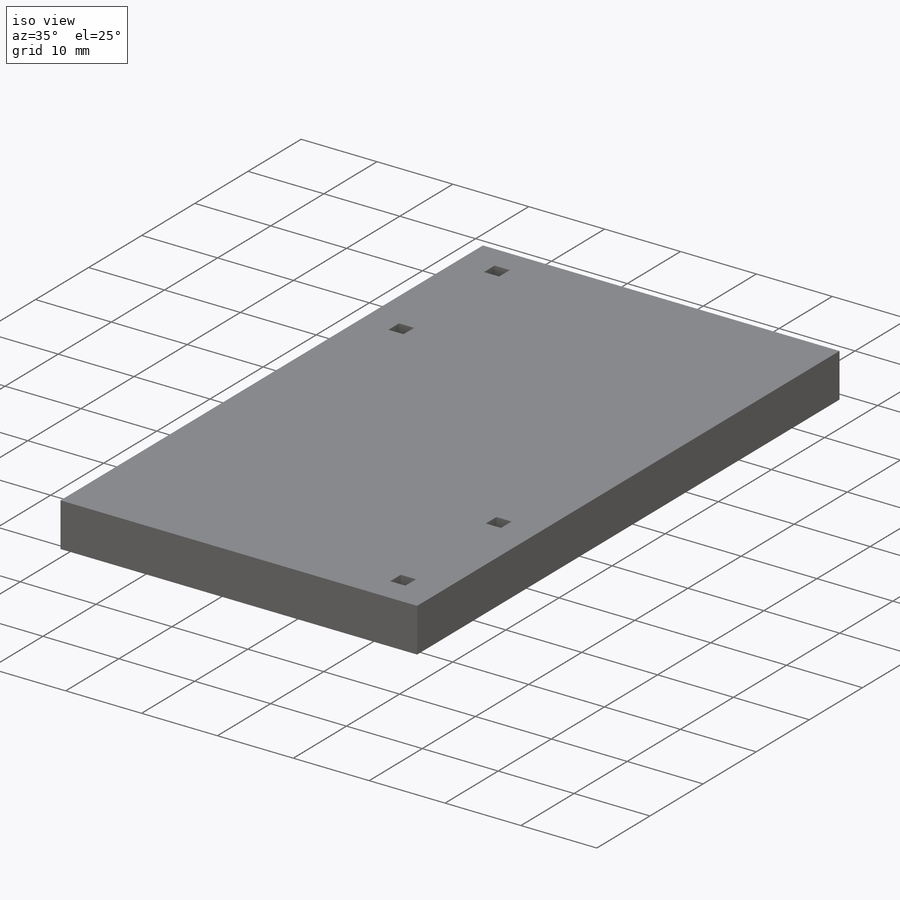
[diagram: iso view]
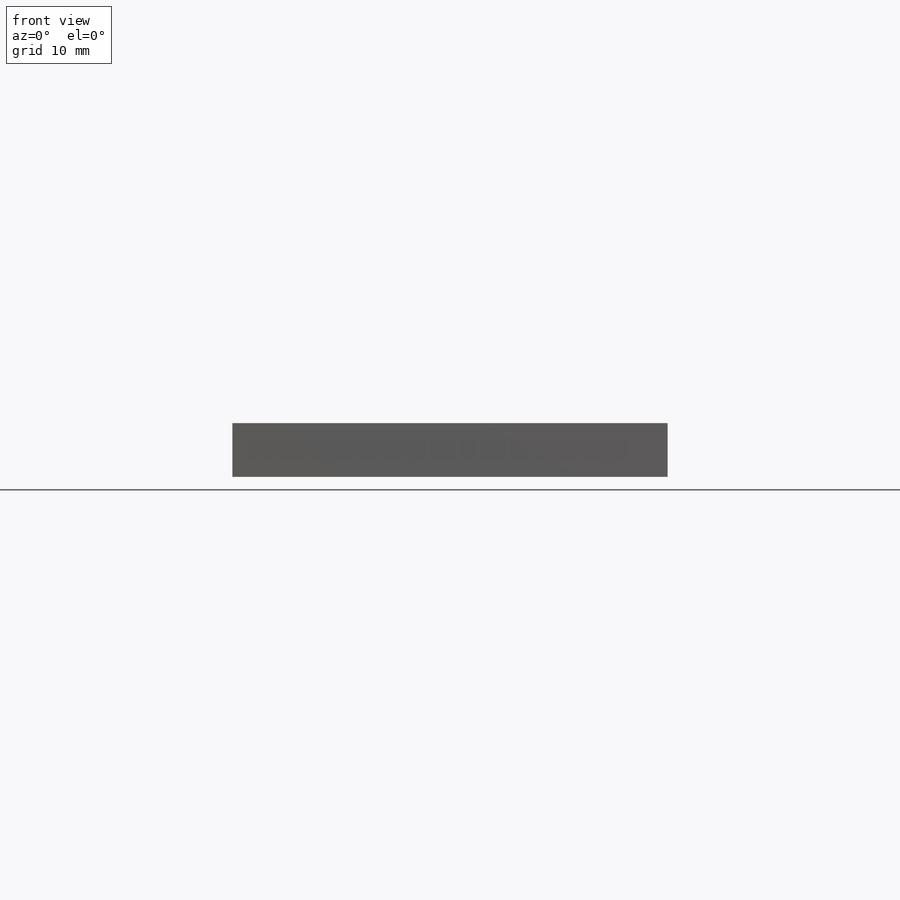
[diagram: front view]
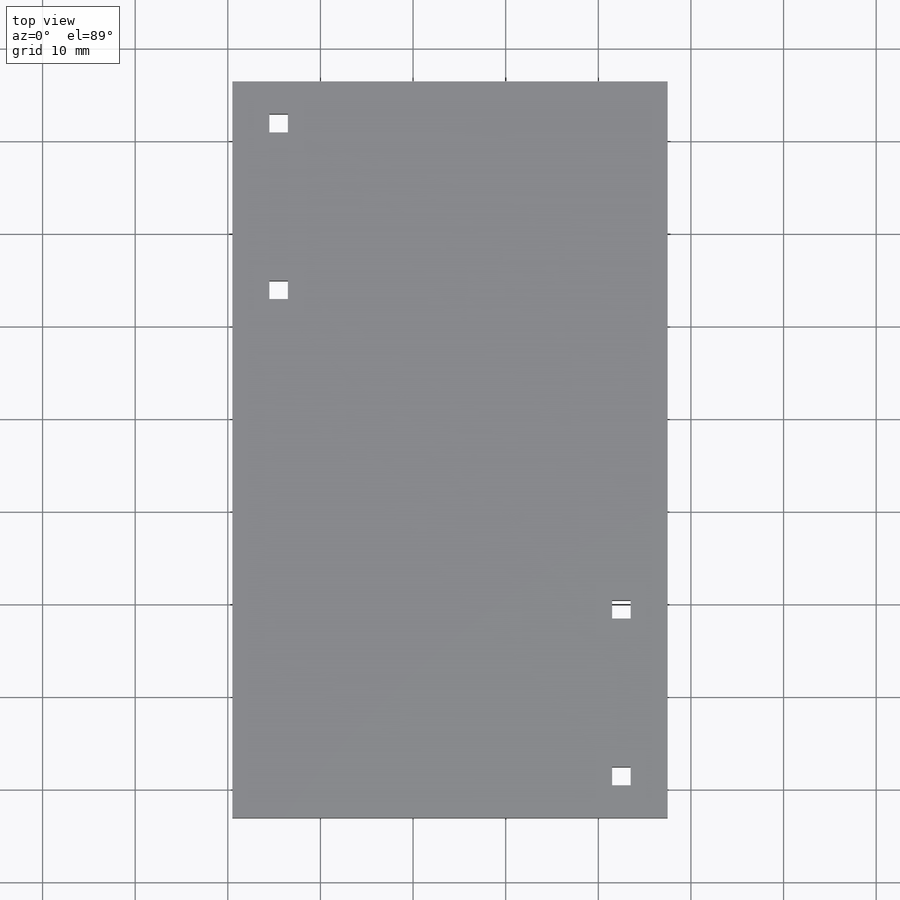
[diagram: top view]
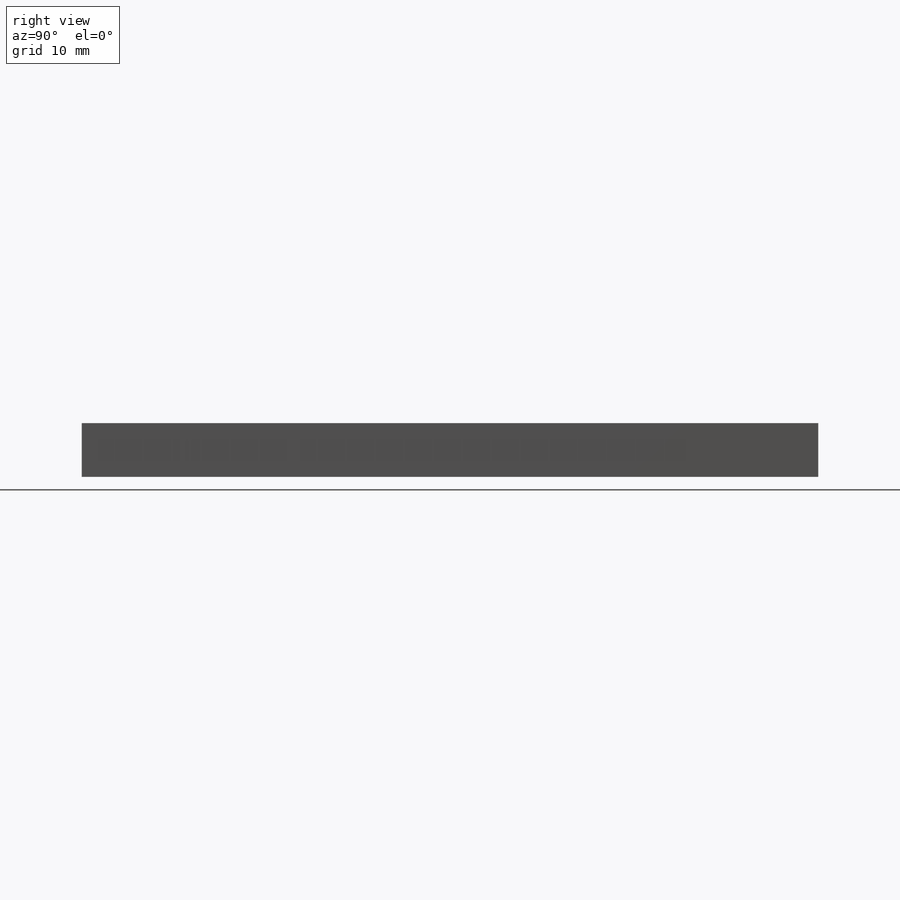
[diagram: right view]
SOLIDWORKS PART (.sldprt)
format: sldprt  version: not decoded by parser v0  size: 5,315,584 bytes
history: native  units: mm
features: sketch x7, extrude x3, material x1, cut_extrude x1, mirror x1 (+16 scaffold rows collapsed)
feature tree (29):
  scaffold x16  (default folders/planes/origin — collapsed)
  material  "Material <not specified>"
  sketch  "Sketch1"
  sketch  "Block2"  dims[c1.D1=10.0 c1.D2=27.0 c2.D1=0.125mm c2.D2=~5.196152mm c2.D3=~0.216506mm c3.D2=79.502mm c3.D3=47.0mm c3.D4=47.0mm c3.D1=0.5mm]
  extrude  "Boss-Extrude1"  Depth=2.4mm
  sketch  "Sketch3"
  sketch  "Block5"  dims[c1.D1=3.0mm c1.D2=27.0mm c1.D3=10.0mm c1.D4=10.0mm c1.D5=27.0mm c1.D6=47.0mm c1.D7=9.0mm c1.D8=3.0mm c1.D9=10.0mm c1.D10=5.0mm c1.D11=0.5mm c1.D12=9.0mm c2.D8=0.5mm c2.D4=10.0mm c2.D2=27.0mm c3.D4=10.0mm c3.D8=0.0mm c3.D1=9.0mm c4.D4=2.0mm c4.D8=3.0mm c4.D10=18.0mm c4.D11=7.5mm c4.D12=1.0mm c5.D4=3.0mm c5.D8=5.0mm c5.D10=~15.760919mm c5.D1=9.0mm c5.D2=26.2509mm c6.D10=23.5mm c6.D2=23.5mm c7.D10=26.2509mm c7.D11=~5.513044mm c7.D12=~41.486956mm c8.D11=~5.513044mm c8.D12=27.0mm c8.D2=5.0mm c8.D4=10.0mm c8.D8=5.0mm c8.D10=~5.75405mm c9.D11=~4.24595mm c9.D10=5.0mm c10.D11=~29.26175mm c10.D1=0.5mm]
  extrude  "Boss-Extrude2"  Depth=2.9mm
  sketch  "Sketch5"
  extrude  "Boss-Extrude3"  Depth=0.5mm
  sketch  "Sketch7"
  sketch  "Block4"  dims[c1.D1=2.0mm c1.D2=3.0mm c1.D3=18.0mm c1.D4=7.5mm c1.D5=1.0mm c2.D3=18.0mm c2.D4=18.0mm c2.D5=2.0mm c2.D1=18.0mm c3.D1=5.0mm c3.D2=13.5mm c3.D3=5.0mm c3.D4=13.5mm c4.D1=5.0mm c4.D2=13.5mm c4.D3=5.0mm c4.D4=13.5mm]
  cut_extrude  "Cut-Extrude4"  [1 undecoded]
  mirror  "Mirror2"
decode coverage: 6 of 12 modeling features carry decoded parameters
note: ~ marks probable driven/reference dimensions
note: 1 parameter value undecoded
note: suppression state not decoded; provenance and decode notes live in map.json
